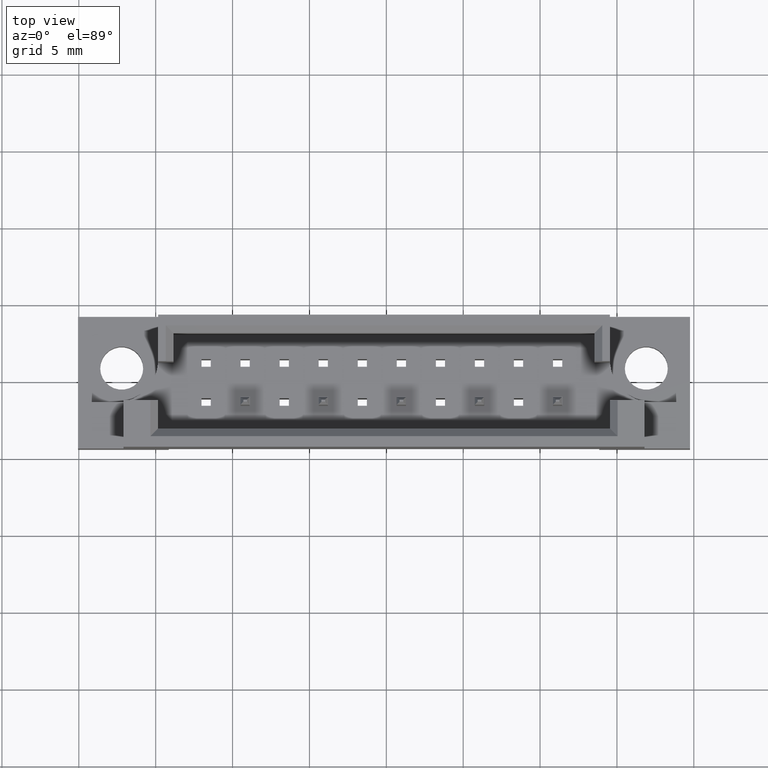
[diagram: clean part render]
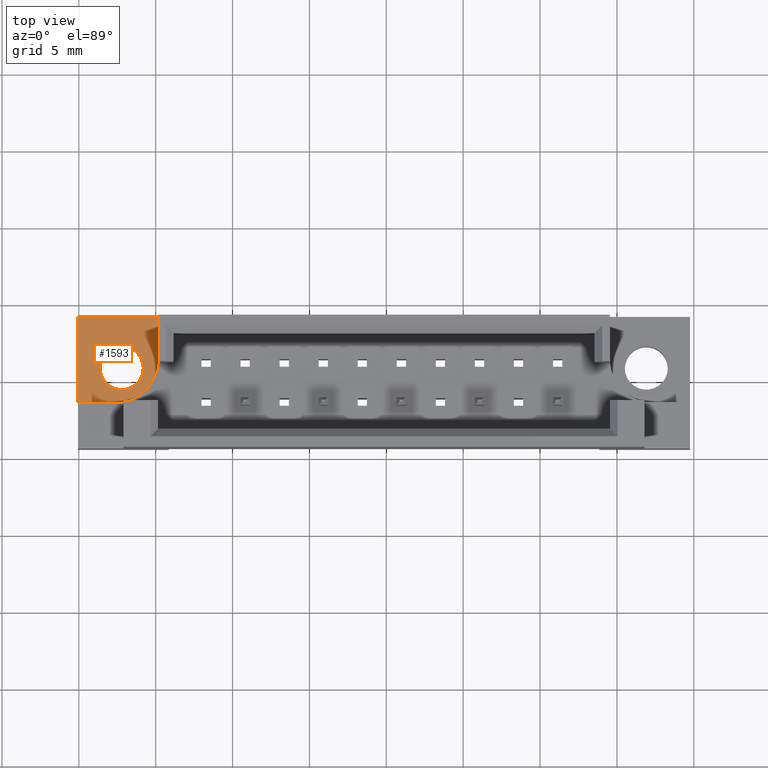
[diagram: same view with one face highlighted and labeled with its STEP entity id]
A machine part, top view. The second image highlights one B-rep face of the part: STEP entity #1593.
In plain terms, the highlighted planar face has unit normal (0, 0, 1).
Its self-contained STEP definition (entity closure, byte-faithful):
#26 = CARTESIAN_POINT ( 'NONE',  ( -14.68999999999999773, 4.299999999999996270, 2.899999999999999911 ) ) ;
#39 = ORIENTED_EDGE ( 'NONE', *, *, #3869, .F. ) ;
#108 = EDGE_CURVE ( 'NONE', #1113, #1156, #4638, .T. ) ;
#125 = DIRECTION ( 'NONE',  ( 1.000000000000000000, 0.0000000000000000000, 0.0000000000000000000 ) ) ;
#159 = AXIS2_PLACEMENT_3D ( 'NONE', #1510, #3882, #433 ) ;
#191 = VERTEX_POINT ( 'NONE', #4518 ) ;
#382 = ORIENTED_EDGE ( 'NONE', *, *, #789, .F. ) ;
#433 = DIRECTION ( 'NONE',  ( 1.000000000000000000, 0.0000000000000000000, 0.0000000000000000000 ) ) ;
#449 = DIRECTION ( 'NONE',  ( 1.000000000000000000, 0.0000000000000000000, -0.0000000000000000000 ) ) ;
#624 = AXIS2_PLACEMENT_3D ( 'NONE', #4814, #4762, #125 ) ;
#756 = AXIS2_PLACEMENT_3D ( 'NONE', #2801, #2705, #1190 ) ;
#789 = EDGE_CURVE ( 'NONE', #1353, #2922, #3594, .T. ) ;
#813 = CARTESIAN_POINT ( 'NONE',  ( -18.45999999999999375, 0.9700000000000010836, 2.899999999999999911 ) ) ;
#893 = CARTESIAN_POINT ( 'NONE',  ( -19.90000000000000213, 4.299999999999996270, 2.899999999999999911 ) ) ;
#1012 = ORIENTED_EDGE ( 'NONE', *, *, #108, .F. ) ;
#1089 = AXIS2_PLACEMENT_3D ( 'NONE', #2747, #3898, #449 ) ;
#1113 = VERTEX_POINT ( 'NONE', #893 ) ;
#1141 = EDGE_CURVE ( 'NONE', #1434, #191, #4557, .T. ) ;
#1156 = VERTEX_POINT ( 'NONE', #4291 ) ;
#1190 = DIRECTION ( 'NONE',  ( 1.000000000000000000, 0.0000000000000000000, 0.0000000000000000000 ) ) ;
#1353 = VERTEX_POINT ( 'NONE', #2187 ) ;
#1418 = VECTOR ( 'NONE', #4269, 1000.000000000000000 ) ;
#1434 = VERTEX_POINT ( 'NONE', #813 ) ;
#1455 = ORIENTED_EDGE ( 'NONE', *, *, #1141, .T. ) ;
#1510 = CARTESIAN_POINT ( 'NONE',  ( -17.48233981823222294, 1.476974248434024251, 2.899999999999999911 ) ) ;
#1593 = ADVANCED_FACE ( 'NONE', ( #2668, #2378 ), #2718, .T. ) ;
#1599 = EDGE_CURVE ( 'NONE', #1156, #1353, #4591, .T. ) ;
#1683 = DIRECTION ( 'NONE',  ( -0.0000000000000000000, 1.000000000000000000, -0.0000000000000000000 ) ) ;
#1793 = ORIENTED_EDGE ( 'NONE', *, *, #3469, .F. ) ;
#2187 = CARTESIAN_POINT ( 'NONE',  ( -14.68999999999999773, 1.270000000000030216, 2.899999999999999911 ) ) ;
#2233 = CARTESIAN_POINT ( 'NONE',  ( -14.68999999999999773, 4.299999999999996270, 2.899999999999999911 ) ) ;
#2284 = ORIENTED_EDGE ( 'NONE', *, *, #1599, .F. ) ;
#2285 = CARTESIAN_POINT ( 'NONE',  ( -19.90000000000000213, -1.270000000000031548, 2.899999999999999911 ) ) ;
#2355 = CARTESIAN_POINT ( 'NONE',  ( -16.94000000000001194, -1.270000000000031326, 2.899999999999999911 ) ) ;
#2378 = FACE_OUTER_BOUND ( 'NONE', #4034, .T. ) ;
#2493 = LINE ( 'NONE', #3216, #3955 ) ;
#2668 = FACE_BOUND ( 'NONE', #3481, .T. ) ;
#2705 = DIRECTION ( 'NONE',  ( -0.0000000000000000000, 0.0000000000000000000, -1.000000000000000000 ) ) ;
#2718 = PLANE ( 'NONE',  #1089 ) ;
#2747 = CARTESIAN_POINT ( 'NONE',  ( -17.48233981823222294, 1.476974248434024251, 2.899999999999999911 ) ) ;
#2795 = CIRCLE ( 'NONE', #624, 1.399999999999995026 ) ;
#2801 = CARTESIAN_POINT ( 'NONE',  ( -17.05999999999999872, 0.9700000000000010836, 2.899999999999999911 ) ) ;
#2803 = VECTOR ( 'NONE', #3868, 1000.000000000000000 ) ;
#2922 = VERTEX_POINT ( 'NONE', #2355 ) ;
#3216 = CARTESIAN_POINT ( 'NONE',  ( -19.90000000000000213, 4.299999999999996270, 2.899999999999999911 ) ) ;
#3342 = VECTOR ( 'NONE', #3446, 1000.000000000000000 ) ;
#3446 = DIRECTION ( 'NONE',  ( 0.0000000000000000000, -1.000000000000000000, 0.0000000000000000000 ) ) ;
#3469 = EDGE_CURVE ( 'NONE', #4430, #1113, #2493, .T. ) ;
#3481 = EDGE_LOOP ( 'NONE', ( #1455, #3883 ) ) ;
#3594 = CIRCLE ( 'NONE', #159, 2.800000000000000266 ) ;
#3868 = DIRECTION ( 'NONE',  ( 1.000000000000000000, -0.0000000000000000000, -0.0000000000000000000 ) ) ;
#3869 = EDGE_CURVE ( 'NONE', #2922, #4430, #4926, .T. ) ;
#3882 = DIRECTION ( 'NONE',  ( -0.0000000000000000000, 0.0000000000000000000, -1.000000000000000000 ) ) ;
#3883 = ORIENTED_EDGE ( 'NONE', *, *, #4415, .T. ) ;
#3898 = DIRECTION ( 'NONE',  ( 0.0000000000000000000, -0.0000000000000000000, 1.000000000000000000 ) ) ;
#3955 = VECTOR ( 'NONE', #1683, 1000.000000000000000 ) ;
#4034 = EDGE_LOOP ( 'NONE', ( #1012, #1793, #39, #382, #2284 ) ) ;
#4269 = DIRECTION ( 'NONE',  ( -1.000000000000000000, -7.325690354631810769E-17, -0.0000000000000000000 ) ) ;
#4291 = CARTESIAN_POINT ( 'NONE',  ( -14.68999999999999773, 4.299999999999996270, 2.899999999999999911 ) ) ;
#4391 = CARTESIAN_POINT ( 'NONE',  ( -19.90000000000000213, -1.270000000000031548, 2.899999999999999911 ) ) ;
#4415 = EDGE_CURVE ( 'NONE', #191, #1434, #2795, .T. ) ;
#4430 = VERTEX_POINT ( 'NONE', #4391 ) ;
#4518 = CARTESIAN_POINT ( 'NONE',  ( -15.66000000000000369, 0.9700000000000013056, 2.899999999999999911 ) ) ;
#4557 = CIRCLE ( 'NONE', #756, 1.399999999999995026 ) ;
#4591 = LINE ( 'NONE', #26, #3342 ) ;
#4638 = LINE ( 'NONE', #2233, #2803 ) ;
#4762 = DIRECTION ( 'NONE',  ( -0.0000000000000000000, 0.0000000000000000000, -1.000000000000000000 ) ) ;
#4814 = CARTESIAN_POINT ( 'NONE',  ( -17.05999999999999872, 0.9700000000000010836, 2.899999999999999911 ) ) ;
#4926 = LINE ( 'NONE', #2285, #1418 ) ;